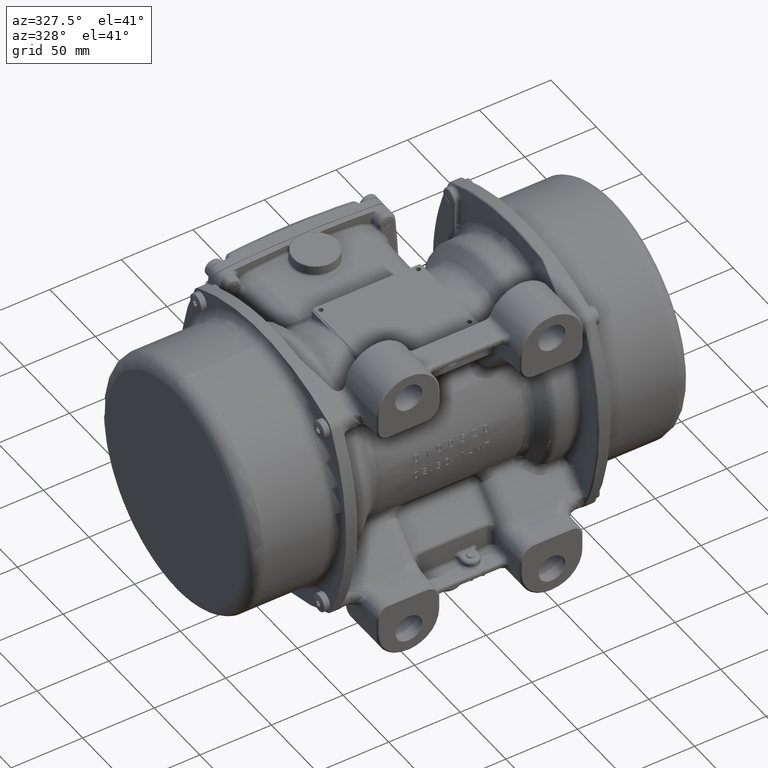
[diagram: clean part render]
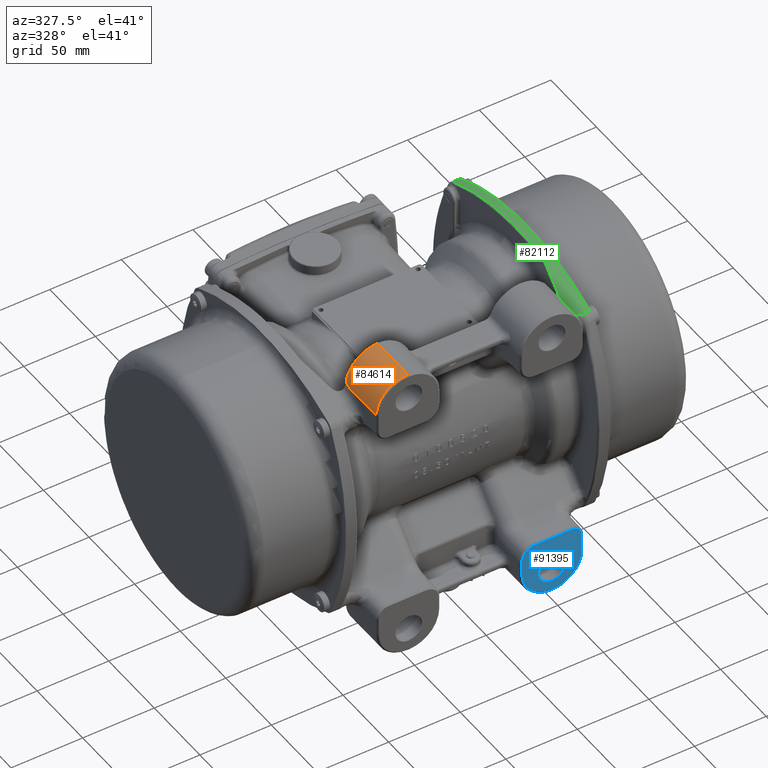
[diagram: same view with three faces highlighted in distinct colors, each labeled with its STEP entity id]
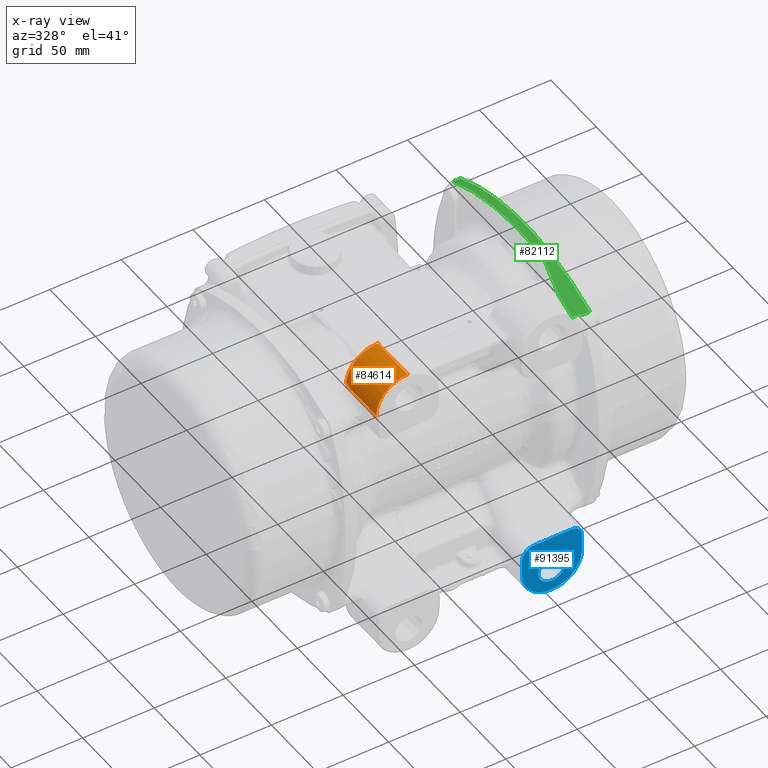
[diagram: x-ray of the same camera — body ghosted, the three highlighted faces saturated]
A machine part, auxiliary view with three faces highlighted in distinct colors.
The next image is the same camera in x-ray (body ghosted, the three faces saturated) — at least one of them is partly hidden behind the body in this view.
Their STEP definitions:

[orange] entity #84614 — the highlighted cylindrical surface (partial cylindrical patch) has radius 22 mm, axis along (0, -1, 0).
#4226 = EDGE_CURVE ( 'NONE', #16878, #92554, #49739, .T. ) ;
#9091 = DIRECTION ( 'NONE',  ( 0.0000000000000000000, 1.000000000000000000, 0.0000000000000000000 ) ) ;
#10227 = CARTESIAN_POINT ( 'NONE',  ( -71.18447656331090900, -59.42145196067797000, 99.11372870309710900 ) ) ;
#10329 = CARTESIAN_POINT ( 'NONE',  ( -50.00000000000000000, 0.0000000000000000000, 85.50000000000000000 ) ) ;
#12853 = DIRECTION ( 'NONE',  ( 0.0000000000000000000, 1.000000000000000000, 0.0000000000000000000 ) ) ;
#16878 = VERTEX_POINT ( 'NONE', #129914 ) ;
#19844 = DIRECTION ( 'NONE',  ( 0.0000000000000000000, 0.0000000000000000000, -1.000000000000000000 ) ) ;
#22841 = DIRECTION ( 'NONE',  ( 0.0000000000000000000, 0.0000000000000000000, 1.000000000000000000 ) ) ;
#28276 = VERTEX_POINT ( 'NONE', #126619 ) ;
#30098 = EDGE_CURVE ( 'NONE', #28276, #108102, #98115, .T. ) ;
#32293 = DIRECTION ( 'NONE',  ( 0.0000000000000000000, -1.000000000000000000, 0.0000000000000000000 ) ) ;
#33436 = EDGE_LOOP ( 'NONE', ( #57628, #91846, #78884, #118281, #90161 ) ) ;
#44623 = B_SPLINE_CURVE_WITH_KNOTS ( 'NONE', 3,
 ( #99727, #76915, #98817, #87844 ),
 .UNSPECIFIED., .F., .F.,
 ( 4, 4 ),
 ( 0.001035414045998133400, 0.005928616594666694600 ),
 .UNSPECIFIED. ) ;
#48181 = AXIS2_PLACEMENT_3D ( 'NONE', #10329, #32293, #19844 ) ;
#49739 = CIRCLE ( 'NONE', #49872, 22.00000000000000700 ) ;
#49872 = AXIS2_PLACEMENT_3D ( 'NONE', #87558, #12853, #22841 ) ;
#51067 = CARTESIAN_POINT ( 'NONE',  ( -72.00000000000000000, -64.01224987562420700, 85.50000000000000000 ) ) ;
#51681 = CARTESIAN_POINT ( 'NONE',  ( -71.95630427625479800, -59.31959175112569900, 86.88589412601309900 ) ) ;
#52893 = VECTOR ( 'NONE', #134087, 1000.000000000000000 ) ;
#57628 = ORIENTED_EDGE ( 'NONE', *, *, #135214, .F. ) ;
#63296 = EDGE_CURVE ( 'NONE', #108102, #103619, #44623, .T. ) ;
#66620 = LINE ( 'NONE', #90277, #52893 ) ;
#71386 = VECTOR ( 'NONE', #9091, 1000.000000000000000 ) ;
#74032 = CARTESIAN_POINT ( 'NONE',  ( -71.95630427625479800, -59.31959175112569900, 86.88589412601309900 ) ) ;
#74977 = CARTESIAN_POINT ( 'NONE',  ( -62.25216945944674800, -59.49131121059498600, 107.5000000000000300 ) ) ;
#76915 = CARTESIAN_POINT ( 'NONE',  ( -71.98428795873610400, -60.88911289557108800, 86.44255705155833900 ) ) ;
#78884 = ORIENTED_EDGE ( 'NONE', *, *, #132642, .F. ) ;
#81604 = LINE ( 'NONE', #139565, #71386 ) ;
#84614 = ADVANCED_FACE ( 'NONE', ( #85729 ), #111364, .T. ) ;
#85729 = FACE_OUTER_BOUND ( 'NONE', #33436, .T. ) ;
#87558 = CARTESIAN_POINT ( 'NONE',  ( -50.00000000000000000, -92.50000000000000000, 85.50000000000000000 ) ) ;
#87844 = CARTESIAN_POINT ( 'NONE',  ( -72.00000000000000000, -64.01224987562420700, 85.50000000000000000 ) ) ;
#90161 = ORIENTED_EDGE ( 'NONE', *, *, #63296, .T. ) ;
#90277 = CARTESIAN_POINT ( 'NONE',  ( -50.00000000000000000, -93.50000000000000000, 107.5000000000000000 ) ) ;
#91846 = ORIENTED_EDGE ( 'NONE', *, *, #4226, .T. ) ;
#92554 = VERTEX_POINT ( 'NONE', #132007 ) ;
#98115 =( BOUNDED_CURVE ( )  B_SPLINE_CURVE ( 3, ( #106906, #74977, #10227, #74032 ),
 .UNSPECIFIED., .F., .T. ) 
 B_SPLINE_CURVE_WITH_KNOTS ( ( 4, 4 ),
 ( 0.0000000000000000000, 1.507759399717887100 ),
 .UNSPECIFIED. ) 
 CURVE ( )  GEOMETRIC_REPRESENTATION_ITEM ( )  RATIONAL_B_SPLINE_CURVE ( ( 1.000000000000000000, 0.8193592099983633100, 0.8193592099983633100, 1.000000000000000000 ) ) 
 REPRESENTATION_ITEM ( '' )  );
#98817 = CARTESIAN_POINT ( 'NONE',  ( -72.00000000000000000, -62.45334643665117400, 85.98068421115726800 ) ) ;
#99727 = CARTESIAN_POINT ( 'NONE',  ( -71.95630427625479800, -59.31959175112569900, 86.88589412601309900 ) ) ;
#103619 = VERTEX_POINT ( 'NONE', #51067 ) ;
#106906 = CARTESIAN_POINT ( 'NONE',  ( -50.00000000000000000, -59.49131121059500100, 107.5000000000000000 ) ) ;
#108102 = VERTEX_POINT ( 'NONE', #51681 ) ;
#111364 = CYLINDRICAL_SURFACE ( 'NONE', #48181, 22.00000000000000700 ) ;
#118281 = ORIENTED_EDGE ( 'NONE', *, *, #30098, .T. ) ;
#126619 = CARTESIAN_POINT ( 'NONE',  ( -50.00000000000000000, -59.49131121059500100, 107.5000000000000000 ) ) ;
#129914 = CARTESIAN_POINT ( 'NONE',  ( -72.00000000000000000, -92.50000000000000000, 85.50000000000000000 ) ) ;
#132007 = CARTESIAN_POINT ( 'NONE',  ( -50.00000000000000000, -92.50000000000000000, 107.5000000000000000 ) ) ;
#132642 = EDGE_CURVE ( 'NONE', #28276, #92554, #66620, .T. ) ;
#134087 = DIRECTION ( 'NONE',  ( -0.0000000000000000000, -1.000000000000000000, -0.0000000000000000000 ) ) ;
#135214 = EDGE_CURVE ( 'NONE', #16878, #103619, #81604, .T. ) ;
#139565 = CARTESIAN_POINT ( 'NONE',  ( -72.00000000000000000, -58.50000000000000000, 85.50000000000000000 ) ) ;

[blue] entity #91395 — the highlighted planar face has unit normal (0, 1, 0).
#904 = B_SPLINE_CURVE_WITH_KNOTS ( 'NONE', 3,
 ( #27352, #115012, #37403, #82514, #114544, #6385, #15444, #104456, #114070, #124552, #113116, #124098, #47815, #26897 ),
 .UNSPECIFIED., .F., .F.,
 ( 4, 2, 2, 2, 2, 2, 4 ),
 ( 0.0000000000000000000, 0.1249999999999994400, 0.2499999999999988900, 0.4999999999999997800, 0.7500000000000006700, 0.8750000000000003300, 1.000000000000000000 ),
 .UNSPECIFIED. ) ;
#3018 = CARTESIAN_POINT ( 'NONE',  ( 70.92763128997529500, -93.50000000000000000, -72.96866994341100100 ) ) ;
#4076 = ORIENTED_EDGE ( 'NONE', *, *, #118252, .T. ) ;
#6385 = CARTESIAN_POINT ( 'NONE',  ( 70.05389292729543600, -93.49999999999997200, -69.47897415792876100 ) ) ;
#7089 = CARTESIAN_POINT ( 'NONE',  ( 50.00000000000000000, -93.50000000000000000, -85.50000000000000000 ) ) ;
#8433 = EDGE_CURVE ( 'NONE', #73346, #124994, #69974, .T. ) ;
#9782 = CARTESIAN_POINT ( 'NONE',  ( 38.00000000000000000, -93.50000000000000000, -66.03681595527851300 ) ) ;
#10251 = CARTESIAN_POINT ( 'NONE',  ( 30.86184623634977000, -93.50000000000001400, -69.47901919270340400 ) ) ;
#10936 = AXIS2_PLACEMENT_3D ( 'NONE', #7089, #49926, #61863 ) ;
#11504 = VERTEX_POINT ( 'NONE', #72550 ) ;
#12394 = CARTESIAN_POINT ( 'NONE',  ( 72.00000000000000000, -93.50000000000000000, -66.03681595527851300 ) ) ;
#12608 = DIRECTION ( 'NONE',  ( 0.0000000000000000000, 0.0000000000000000000, 1.000000000000000000 ) ) ;
#13532 = DIRECTION ( 'NONE',  ( 0.0000000000000000000, 1.000000000000000000, 0.0000000000000000000 ) ) ;
#14841 = EDGE_LOOP ( 'NONE', ( #29371, #109803, #4076, #44352, #43068, #62234, #78255 ) ) ;
#15444 = CARTESIAN_POINT ( 'NONE',  ( 69.53871759944470900, -93.50000000000000000, -68.70774320255058900 ) ) ;
#18376 = CARTESIAN_POINT ( 'NONE',  ( 64.00000000000000000, -93.50000000000000000, -66.03681595527851300 ) ) ;
#18595 = AXIS2_PLACEMENT_3D ( 'NONE', #19409, #52219, #95577 ) ;
#19409 = CARTESIAN_POINT ( 'NONE',  ( 50.00000000000000000, -93.50000000000000000, -85.50000000000000000 ) ) ;
#20200 = VERTEX_POINT ( 'NONE', #18376 ) ;
#21190 = CARTESIAN_POINT ( 'NONE',  ( 29.52858256611911600, -93.50000000000001400, -72.09082749195113100 ) ) ;
#22125 = CARTESIAN_POINT ( 'NONE',  ( 30.19866739991510200, -93.50000000000001400, -70.47239491240974000 ) ) ;
#24508 = EDGE_CURVE ( 'NONE', #11504, #73346, #109892, .T. ) ;
#26897 = CARTESIAN_POINT ( 'NONE',  ( 64.00000000000000000, -93.50000000000000000, -66.03681595527851300 ) ) ;
#27352 = CARTESIAN_POINT ( 'NONE',  ( 70.92763128997529500, -93.50000000000000000, -72.96866994341100100 ) ) ;
#28310 = CARTESIAN_POINT ( 'NONE',  ( 50.00000000000000000, -93.50000000000000000, -90.00000000000000000 ) ) ;
#29371 = ORIENTED_EDGE ( 'NONE', *, *, #24508, .T. ) ;
#31720 = CARTESIAN_POINT ( 'NONE',  ( 36.83068475368485700, -93.50000000000001400, -66.09457631912852100 ) ) ;
#32202 = CARTESIAN_POINT ( 'NONE',  ( 29.35781711507522500, -93.50000000000001400, -72.65432138536655800 ) ) ;
#32271 = EDGE_CURVE ( 'NONE', #37252, #91130, #132158, .T. ) ;
#37252 = VERTEX_POINT ( 'NONE', #80644 ) ;
#37403 = CARTESIAN_POINT ( 'NONE',  ( 70.88279815791987900, -93.50000000000001400, -72.06059695443923400 ) ) ;
#40214 = DIRECTION ( 'NONE',  ( 0.0000000000000000000, 1.000000000000000000, 0.0000000000000000000 ) ) ;
#42446 = ORIENTED_EDGE ( 'NONE', *, *, #80926, .T. ) ;
#42651 = CARTESIAN_POINT ( 'NONE',  ( 35.12271976207497900, -93.50000000000001400, -66.49337421847072000 ) ) ;
#43068 = ORIENTED_EDGE ( 'NONE', *, *, #106422, .T. ) ;
#44352 = ORIENTED_EDGE ( 'NONE', *, *, #67760, .T. ) ;
#45098 = CARTESIAN_POINT ( 'NONE',  ( 29.07236871002470100, -93.50000000000000000, -74.96988903200859500 ) ) ;
#45653 = CARTESIAN_POINT ( 'NONE',  ( 50.00000000000000000, -93.50000000000000000, -80.62807894494886800 ) ) ;
#47815 = CARTESIAN_POINT ( 'NONE',  ( 64.45443322709140000, -93.50000000000002800, -66.03685745873728800 ) ) ;
#48485 = DIRECTION ( 'NONE',  ( -1.000000000000000000, 0.0000000000000000000, 0.0000000000000000000 ) ) ;
#49926 = DIRECTION ( 'NONE',  ( -0.0000000000000000000, -1.000000000000000000, -0.0000000000000000000 ) ) ;
#50332 = LINE ( 'NONE', #12394, #91178 ) ;
#51389 = FACE_OUTER_BOUND ( 'NONE', #14841, .T. ) ;
#52219 = DIRECTION ( 'NONE',  ( -0.0000000000000000000, -1.000000000000000000, -0.0000000000000000000 ) ) ;
#53495 = CARTESIAN_POINT ( 'NONE',  ( 70.92763128997529500, -93.50000000000000000, -73.00487635439060300 ) ) ;
#53989 = CARTESIAN_POINT ( 'NONE',  ( 29.07240133176116000, -93.50000000000001400, -74.38422113283317600 ) ) ;
#54931 = CARTESIAN_POINT ( 'NONE',  ( 35.68592631991003800, -93.50000000000000000, -66.32234858004211700 ) ) ;
#56389 = VERTEX_POINT ( 'NONE', #45653 ) ;
#58805 = CIRCLE ( 'NONE', #85333, 9.371921055051121400 ) ;
#61863 = DIRECTION ( 'NONE',  ( 0.0000000000000000000, 0.0000000000000000000, 1.000000000000000000 ) ) ;
#62143 = PLANE ( 'NONE',  #76772 ) ;
#62234 = ORIENTED_EDGE ( 'NONE', *, *, #32271, .T. ) ;
#67760 = EDGE_CURVE ( 'NONE', #90432, #20200, #904, .T. ) ;
#69974 = CIRCLE ( 'NONE', #10936, 20.92763128997529500 ) ;
#72550 = CARTESIAN_POINT ( 'NONE',  ( 29.07236871002470100, -93.50000000000000000, -85.50000000000000000 ) ) ;
#73346 = VERTEX_POINT ( 'NONE', #115017 ) ;
#74716 = VECTOR ( 'NONE', #103708, 1000.000000000000000 ) ;
#76772 = AXIS2_PLACEMENT_3D ( 'NONE', #83968, #13532, #12608 ) ;
#78255 = ORIENTED_EDGE ( 'NONE', *, *, #102233, .T. ) ;
#80644 = CARTESIAN_POINT ( 'NONE',  ( 38.00000000000000000, -93.50000000000000000, -66.03681595527851300 ) ) ;
#80926 = EDGE_CURVE ( 'NONE', #56389, #56389, #58805, .T. ) ;
#82514 = CARTESIAN_POINT ( 'NONE',  ( 70.70623943661730900, -93.50000000000000000, -71.17206767895555700 ) ) ;
#82968 = CARTESIAN_POINT ( 'NONE',  ( 70.92763128997529500, -93.50000000000000000, -85.50000000000000000 ) ) ;
#83968 = CARTESIAN_POINT ( 'NONE',  ( 72.00000000000000000, -93.50000000000000000, -65.00000000000000000 ) ) ;
#85333 = AXIS2_PLACEMENT_3D ( 'NONE', #28310, #40214, #93033 ) ;
#90432 = VERTEX_POINT ( 'NONE', #3018 ) ;
#91130 = VERTEX_POINT ( 'NONE', #45098 ) ;
#91178 = VECTOR ( 'NONE', #48485, 1000.000000000000000 ) ;
#91395 = ADVANCED_FACE ( 'NONE', ( #139970, #51389 ), #62143, .F. ) ;
#93033 = DIRECTION ( 'NONE',  ( 0.0000000000000000000, 0.0000000000000000000, 1.000000000000000000 ) ) ;
#95577 = DIRECTION ( 'NONE',  ( 0.0000000000000000000, 0.0000000000000000000, 1.000000000000000000 ) ) ;
#100207 = LINE ( 'NONE', #131372, #74716 ) ;
#102233 = EDGE_CURVE ( 'NONE', #91130, #11504, #100207, .T. ) ;
#103708 = DIRECTION ( 'NONE',  ( 0.0000000000000000000, 0.0000000000000000000, -1.000000000000000000 ) ) ;
#104456 = CARTESIAN_POINT ( 'NONE',  ( 68.25843252595852600, -93.49999999999998600, -67.42647476186438400 ) ) ;
#106422 = EDGE_CURVE ( 'NONE', #20200, #37252, #50332, .T. ) ;
#108814 = CARTESIAN_POINT ( 'NONE',  ( 37.41541917729106400, -93.50000000000000000, -66.03684855617184700 ) ) ;
#109803 = ORIENTED_EDGE ( 'NONE', *, *, #8433, .T. ) ;
#109892 = CIRCLE ( 'NONE', #18595, 20.92763128997529500 ) ;
#113116 = CARTESIAN_POINT ( 'NONE',  ( 65.79556928961662300, -93.50000000000001400, -66.25842814147922900 ) ) ;
#114070 = CARTESIAN_POINT ( 'NONE',  ( 67.48751506521141200, -93.50000000000000000, -66.91121950100088600 ) ) ;
#114544 = CARTESIAN_POINT ( 'NONE',  ( 70.57349867274169200, -93.50000000000000000, -70.73445932090376700 ) ) ;
#115012 = CARTESIAN_POINT ( 'NONE',  ( 70.92758987845725500, -93.50000000000000000, -72.51469046623512300 ) ) ;
#115017 = CARTESIAN_POINT ( 'NONE',  ( 50.00000000000000000, -93.50000000000000000, -106.4276312899752000 ) ) ;
#118252 = EDGE_CURVE ( 'NONE', #124994, #90432, #132496, .T. ) ;
#119066 = EDGE_LOOP ( 'NONE', ( #42446 ) ) ;
#119343 = CARTESIAN_POINT ( 'NONE',  ( 29.13000416877456900, -93.50000000000004300, -73.79994447238488000 ) ) ;
#124074 = VECTOR ( 'NONE', #141131, 1000.000000000000000 ) ;
#124098 = CARTESIAN_POINT ( 'NONE',  ( 64.90745834872393500, -93.50000000000002800, -66.08159103041320700 ) ) ;
#124552 = CARTESIAN_POINT ( 'NONE',  ( 66.23287704770560000, -93.50000000000001400, -66.39109813162753000 ) ) ;
#124994 = VERTEX_POINT ( 'NONE', #82968 ) ;
#129775 = CARTESIAN_POINT ( 'NONE',  ( 33.50519072103679700, -93.50000000000000000, -67.16366852502861200 ) ) ;
#130248 = CARTESIAN_POINT ( 'NONE',  ( 29.07236871002470100, -93.50000000000000000, -74.96988903200859500 ) ) ;
#131372 = CARTESIAN_POINT ( 'NONE',  ( 29.07236871002470100, -93.50000000000000000, -65.00000000000000000 ) ) ;
#132158 = B_SPLINE_CURVE_WITH_KNOTS ( 'NONE', 3,
 ( #9782, #108814, #31720, #54931, #42651, #129775, #140698, #10251, #22125, #21190, #32202, #119343, #53989, #130248 ),
 .UNSPECIFIED., .F., .F.,
 ( 4, 2, 2, 2, 2, 2, 4 ),
 ( 0.0000000000000000000, 0.1250000000000000300, 0.2500000000000000600, 0.5000000000000001100, 0.7500000000000002200, 0.8750000000000001100, 1.000000000000000000 ),
 .UNSPECIFIED. ) ;
#132496 = LINE ( 'NONE', #53495, #124074 ) ;
#139970 = FACE_BOUND ( 'NONE', #119066, .T. ) ;
#140698 = CARTESIAN_POINT ( 'NONE',  ( 32.51257651350071100, -93.50000000000000000, -67.82748577253211400 ) ) ;
#141131 = DIRECTION ( 'NONE',  ( 0.0000000000000000000, 0.0000000000000000000, 1.000000000000000000 ) ) ;

[green] entity #82112 — the highlighted cylindrical surface (partial cylindrical patch) has radius 163 mm, axis along (1, 0, 0).
#1318 = EDGE_LOOP ( 'NONE', ( #120606, #75561, #88539, #102761, #31527, #81827, #41258, #114127, #137134, #12296, #122083 ) ) ;
#8532 = CARTESIAN_POINT ( 'NONE',  ( 79.00000000000000000, -70.04470885505028800, 75.19479293050700600 ) ) ;
#8930 = CARTESIAN_POINT ( 'NONE',  ( 85.03981301421501400, -27.79474097266030000, 88.62486191309081100 ) ) ;
#9803 = CARTESIAN_POINT ( 'NONE',  ( 84.99399469158468900, 18.56685279070390500, 89.96517323423360300 ) ) ;
#11994 = CIRCLE ( 'NONE', #35109, 163.0000000000000000 ) ;
#12296 = ORIENTED_EDGE ( 'NONE', *, *, #24192, .T. ) ;
#13123 = DIRECTION ( 'NONE',  ( 0.0000000000000000000, 0.0000000000000000000, -1.000000000000000000 ) ) ;
#13615 = VERTEX_POINT ( 'NONE', #8930 ) ;
#13712 = VERTEX_POINT ( 'NONE', #55019 ) ;
#14083 = EDGE_CURVE ( 'NONE', #61861, #114738, #11994, .T. ) ;
#18660 = B_SPLINE_CURVE_WITH_KNOTS ( 'NONE', 3,
 ( #127272, #72922, #94803, #116822 ),
 .UNSPECIFIED., .F., .F.,
 ( 4, 4 ),
 ( 0.0000000000000000000, 0.002802746713130849600 ),
 .UNSPECIFIED. ) ;
#20287 = CARTESIAN_POINT ( 'NONE',  ( 85.48723200359769700, 71.01404973767989800, 74.72955314272719800 ) ) ;
#20291 = CARTESIAN_POINT ( 'NONE',  ( 79.00000000000000000, -61.37645135133379900, 79.01520500406159900 ) ) ;
#22964 = CARTESIAN_POINT ( 'NONE',  ( 84.91227039994420500, -71.01404973767999700, 74.72955314272719800 ) ) ;
#23419 = DIRECTION ( 'NONE',  ( 1.000000000000000000, 0.0000000000000000000, 0.0000000000000000000 ) ) ;
#24192 = EDGE_CURVE ( 'NONE', #40017, #116289, #79060, .T. ) ;
#24237 = CARTESIAN_POINT ( 'NONE',  ( 78.96068239280941700, -57.23940463725283200, 80.64760420617449200 ) ) ;
#30806 = CARTESIAN_POINT ( 'NONE',  ( 85.05358858076388600, 31.19137921331273900, 88.22498620659658300 ) ) ;
#31527 = ORIENTED_EDGE ( 'NONE', *, *, #45976, .T. ) ;
#31747 = CARTESIAN_POINT ( 'NONE',  ( 84.95961069827311000, 5.885286579069982000, 90.96084151704324900 ) ) ;
#32575 = DIRECTION ( 'NONE',  ( 1.000000000000000000, 0.0000000000000000000, 0.0000000000000000000 ) ) ;
#32652 = AXIS2_PLACEMENT_3D ( 'NONE', #63439, #23419, #129149 ) ;
#35109 = AXIS2_PLACEMENT_3D ( 'NONE', #64928, #88162, #131100 ) ;
#35776 = EDGE_CURVE ( 'NONE', #116289, #52464, #95355, .T. ) ;
#36599 = EDGE_CURVE ( 'NONE', #52464, #61861, #86351, .T. ) ;
#37026 = EDGE_CURVE ( 'NONE', #99322, #59043, #105868, .T. ) ;
#38980 =( BOUNDED_CURVE ( )  B_SPLINE_CURVE ( 3, ( #104197, #70857, #116192, #137530 ),
 .UNSPECIFIED., .F., .F. ) 
 B_SPLINE_CURVE_WITH_KNOTS ( ( 4, 4 ),
 ( 0.9696193167462186000, 1.112226139168310600 ),
 .UNSPECIFIED. ) 
 CURVE ( )  GEOMETRIC_REPRESENTATION_ITEM ( )  RATIONAL_B_SPLINE_CURVE ( ( 1.000000000000000000, 0.9983059924184979300, 0.9983059924184979300, 1.000000000000000000 ) ) 
 REPRESENTATION_ITEM ( '' )  );
#40017 = VERTEX_POINT ( 'NONE', #8532 ) ;
#41258 = ORIENTED_EDGE ( 'NONE', *, *, #37026, .T. ) ;
#41727 = B_SPLINE_CURVE_WITH_KNOTS ( 'NONE', 3,
 ( #20287, #53073, #43610, #96442, #30806, #75031, #9803, #53537, #85944, #31747, #118908, #121716, #76427, #65499 ),
 .UNSPECIFIED., .F., .F.,
 ( 4, 2, 2, 2, 2, 2, 4 ),
 ( 0.0000000000000000000, 0.02520616277970644600, 0.05041232555941289200, 0.05671386625433950900, 0.06301540694926612000, 0.07561848833911935500, 0.1008246511188258500 ),
 .UNSPECIFIED. ) ;
#43610 = CARTESIAN_POINT ( 'NONE',  ( 85.27564181875415300, 55.48735377343628300, 81.50724048752705600 ) ) ;
#45976 = EDGE_CURVE ( 'NONE', #13615, #13712, #18660, .T. ) ;
#46589 = CARTESIAN_POINT ( 'NONE',  ( 79.00000000000000000, -59.31554342691112000, 79.85287806377949900 ) ) ;
#48740 = CYLINDRICAL_SURFACE ( 'NONE', #32652, 163.0000000000000000 ) ;
#49755 = CARTESIAN_POINT ( 'NONE',  ( 84.51364399271609800, -70.04470885504989000, 75.19479293050719100 ) ) ;
#51747 = CARTESIAN_POINT ( 'NONE',  ( 79.27780754179768500, -54.46409556670657500, 81.64541957321645800 ) ) ;
#52464 = VERTEX_POINT ( 'NONE', #22964 ) ;
#53073 = CARTESIAN_POINT ( 'NONE',  ( 85.37370443854362600, 63.34494570487322600, 78.44154652505662300 ) ) ;
#53537 = CARTESIAN_POINT ( 'NONE',  ( 84.97921079013434600, 14.33698579958138300, 90.39429363348564600 ) ) ;
#55019 = CARTESIAN_POINT ( 'NONE',  ( 84.76522260799049500, -30.53898323122485100, 88.12573900930479500 ) ) ;
#55939 = CARTESIAN_POINT ( 'NONE',  ( 79.00000000000000000, 2.277198894236875300E-024, -71.98787847279119500 ) ) ;
#57846 = DIRECTION ( 'NONE',  ( 1.000000000000000000, 0.0000000000000000000, 0.0000000000000000000 ) ) ;
#58230 = CARTESIAN_POINT ( 'NONE',  ( 84.91227039994420500, -71.01404973767999700, 74.72955314272719800 ) ) ;
#59043 = VERTEX_POINT ( 'NONE', #82250 ) ;
#59839 = LINE ( 'NONE', #123204, #138308 ) ;
#61699 = CARTESIAN_POINT ( 'NONE',  ( 79.74213417574110000, -52.98495852258109600, 82.16008346754830400 ) ) ;
#61861 = VERTEX_POINT ( 'NONE', #119004 ) ;
#63439 = CARTESIAN_POINT ( 'NONE',  ( -101.5000000000000000, 2.277198894236875300E-024, -71.98787847279119500 ) ) ;
#64434 = VERTEX_POINT ( 'NONE', #89822 ) ;
#64912 = CARTESIAN_POINT ( 'NONE',  ( -101.5000000000000000, -71.01404973767999700, 74.72955314272719800 ) ) ;
#64928 = CARTESIAN_POINT ( 'NONE',  ( 91.00000000000000000, 2.277198894236875300E-024, -71.98787847279119500 ) ) ;
#65499 = CARTESIAN_POINT ( 'NONE',  ( 85.03981301421501400, -27.79474097266030000, 88.62486191309081100 ) ) ;
#66219 = CARTESIAN_POINT ( 'NONE',  ( -101.5000000000000000, -70.04470885504979100, 75.19479293050719100 ) ) ;
#66449 = B_SPLINE_CURVE_WITH_KNOTS ( 'NONE', 3,
 ( #89435, #24237, #46589, #100365 ),
 .UNSPECIFIED., .F., .F.,
 ( 4, 4 ),
 ( 0.002261100763834970800, 0.008931097727752366000 ),
 .UNSPECIFIED. ) ;
#68747 = CARTESIAN_POINT ( 'NONE',  ( 91.00000000000000000, 71.01404973767989800, 74.72955314272719800 ) ) ;
#70857 = CARTESIAN_POINT ( 'NONE',  ( 83.16227077923427700, -38.15653777660957500, 86.67281842589186200 ) ) ;
#72734 = CARTESIAN_POINT ( 'NONE',  ( 78.89318181003810100, -55.14786342736469700, 81.39958242084489400 ) ) ;
#72922 = CARTESIAN_POINT ( 'NONE',  ( 85.04525813113114900, -28.72031924801029800, 88.46468652257405600 ) ) ;
#75031 = CARTESIAN_POINT ( 'NONE',  ( 85.00282291425857300, 20.68424360165092300, 89.70833693051641000 ) ) ;
#75561 = ORIENTED_EDGE ( 'NONE', *, *, #14083, .T. ) ;
#76427 = CARTESIAN_POINT ( 'NONE',  ( 84.99041947427103600, -19.39867010478561200, 90.07783889611219800 ) ) ;
#78405 = EDGE_CURVE ( 'NONE', #59043, #82379, #66449, .T. ) ;
#79060 = LINE ( 'NONE', #66219, #125214 ) ;
#81827 = ORIENTED_EDGE ( 'NONE', *, *, #133447, .T. ) ;
#82112 = ADVANCED_FACE ( 'NONE', ( #121936 ), #48740, .T. ) ;
#82250 = CARTESIAN_POINT ( 'NONE',  ( 78.89318181003810100, -55.14786342736469700, 81.39958242084489400 ) ) ;
#82379 = VERTEX_POINT ( 'NONE', #20291 ) ;
#85944 = CARTESIAN_POINT ( 'NONE',  ( 84.97324240460692100, 12.22320642598984500, 90.56695446298607500 ) ) ;
#86351 = LINE ( 'NONE', #64912, #140905 ) ;
#87679 = CIRCLE ( 'NONE', #123166, 163.0000000000000000 ) ;
#88162 = DIRECTION ( 'NONE',  ( -1.000000000000000000, -0.0000000000000000000, -0.0000000000000000000 ) ) ;
#88539 = ORIENTED_EDGE ( 'NONE', *, *, #91219, .F. ) ;
#89435 = CARTESIAN_POINT ( 'NONE',  ( 78.89318181003810100, -55.14786342736469700, 81.39958242084489400 ) ) ;
#89822 = CARTESIAN_POINT ( 'NONE',  ( 85.48723200359769700, 71.01404973767989800, 74.72955314272719800 ) ) ;
#91219 = EDGE_CURVE ( 'NONE', #64434, #114738, #59839, .T. ) ;
#94803 = CARTESIAN_POINT ( 'NONE',  ( 84.95540459665205900, -29.63519957023778400, 88.29812056248921700 ) ) ;
#95355 = B_SPLINE_CURVE_WITH_KNOTS ( 'NONE', 3,
 ( #112595, #123592, #124055, #58230 ),
 .UNSPECIFIED., .F., .F.,
 ( 4, 4 ),
 ( -1.721656244424868900E-005, 0.001129507064507319100 ),
 .UNSPECIFIED. ) ;
#96442 = CARTESIAN_POINT ( 'NONE',  ( 85.11556374661377300, 39.41058288379149800, 86.39900207664230400 ) ) ;
#99322 = VERTEX_POINT ( 'NONE', #61699 ) ;
#100365 = CARTESIAN_POINT ( 'NONE',  ( 79.00000000000000000, -61.37645135133379900, 79.01520500406159900 ) ) ;
#102761 = ORIENTED_EDGE ( 'NONE', *, *, #126063, .T. ) ;
#104197 = CARTESIAN_POINT ( 'NONE',  ( 84.76522260799049500, -30.53898323122485100, 88.12573900930479500 ) ) ;
#105868 = B_SPLINE_CURVE_WITH_KNOTS ( 'NONE', 3,
 ( #117116, #128500, #51747, #72734 ),
 .UNSPECIFIED., .F., .F.,
 ( 4, 4 ),
 ( 0.0000000000000000000, 0.002444839378856338500 ),
 .UNSPECIFIED. ) ;
#110761 = DIRECTION ( 'NONE',  ( 1.000000000000000000, 0.0000000000000000000, 0.0000000000000000000 ) ) ;
#112595 = CARTESIAN_POINT ( 'NONE',  ( 84.51364399271609800, -70.04470885504989000, 75.19479293050719100 ) ) ;
#114127 = ORIENTED_EDGE ( 'NONE', *, *, #78405, .T. ) ;
#114738 = VERTEX_POINT ( 'NONE', #68747 ) ;
#116192 = CARTESIAN_POINT ( 'NONE',  ( 81.48506677218075800, -45.65122559838607000, 84.68089224057996500 ) ) ;
#116289 = VERTEX_POINT ( 'NONE', #49755 ) ;
#116822 = CARTESIAN_POINT ( 'NONE',  ( 84.76522260799049500, -30.53898323122485100, 88.12573900930479500 ) ) ;
#117116 = CARTESIAN_POINT ( 'NONE',  ( 79.74213417574110000, -52.98495852258109600, 82.16008346754830400 ) ) ;
#118908 = CARTESIAN_POINT ( 'NONE',  ( 84.95622365670848800, 1.664559258779345900, 91.05815852646274800 ) ) ;
#119004 = CARTESIAN_POINT ( 'NONE',  ( 91.00000000000000000, -71.01404973767999700, 74.72955314272719800 ) ) ;
#120606 = ORIENTED_EDGE ( 'NONE', *, *, #36599, .T. ) ;
#121716 = CARTESIAN_POINT ( 'NONE',  ( 84.96309493681151500, -10.98412571340327800, 90.86012654128461500 ) ) ;
#121936 = FACE_OUTER_BOUND ( 'NONE', #1318, .T. ) ;
#122083 = ORIENTED_EDGE ( 'NONE', *, *, #35776, .T. ) ;
#123166 = AXIS2_PLACEMENT_3D ( 'NONE', #55939, #110761, #13123 ) ;
#123204 = CARTESIAN_POINT ( 'NONE',  ( -101.5000000000000000, 71.01404973767989800, 74.72955314272719800 ) ) ;
#123592 = CARTESIAN_POINT ( 'NONE',  ( 84.65015658775601500, -70.36709590636972700, 75.04136789117997400 ) ) ;
#124055 = CARTESIAN_POINT ( 'NONE',  ( 84.78570530920357800, -70.68934248638056800, 74.88671767757530500 ) ) ;
#124672 = EDGE_CURVE ( 'NONE', #82379, #40017, #87679, .T. ) ;
#125214 = VECTOR ( 'NONE', #130062, 1000.000000000000000 ) ;
#126063 = EDGE_CURVE ( 'NONE', #64434, #13615, #41727, .T. ) ;
#127272 = CARTESIAN_POINT ( 'NONE',  ( 85.03981301421501400, -27.79474097266030000, 88.62486191309081100 ) ) ;
#128500 = CARTESIAN_POINT ( 'NONE',  ( 79.56182066591884400, -53.74366320591879300, 81.89929548390247800 ) ) ;
#129149 = DIRECTION ( 'NONE',  ( 0.0000000000000000000, 0.0000000000000000000, -1.000000000000000000 ) ) ;
#130062 = DIRECTION ( 'NONE',  ( 1.000000000000000000, 0.0000000000000000000, 0.0000000000000000000 ) ) ;
#131100 = DIRECTION ( 'NONE',  ( 0.0000000000000000000, 1.776356839400250500E-015, -1.000000000000000000 ) ) ;
#133447 = EDGE_CURVE ( 'NONE', #13712, #99322, #38980, .T. ) ;
#137134 = ORIENTED_EDGE ( 'NONE', *, *, #124672, .T. ) ;
#137530 = CARTESIAN_POINT ( 'NONE',  ( 79.74213417574110000, -52.98495852258109600, 82.16008346754830400 ) ) ;
#138308 = VECTOR ( 'NONE', #57846, 1000.000000000000000 ) ;
#140905 = VECTOR ( 'NONE', #32575, 1000.000000000000000 ) ;